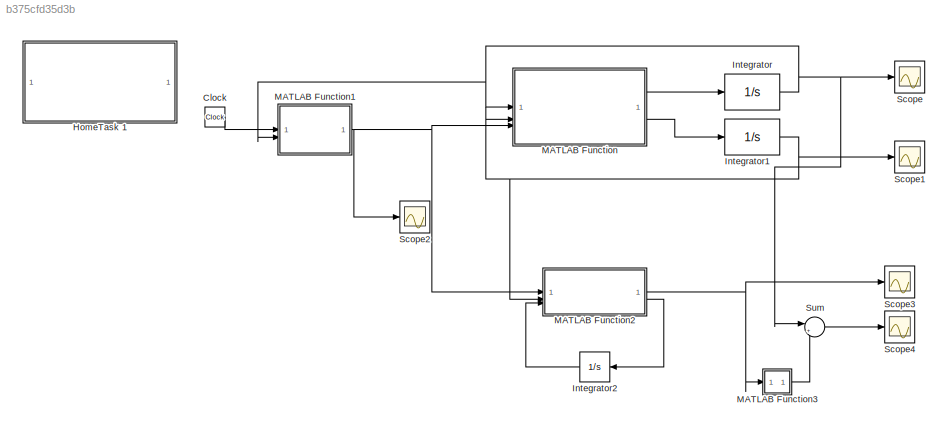
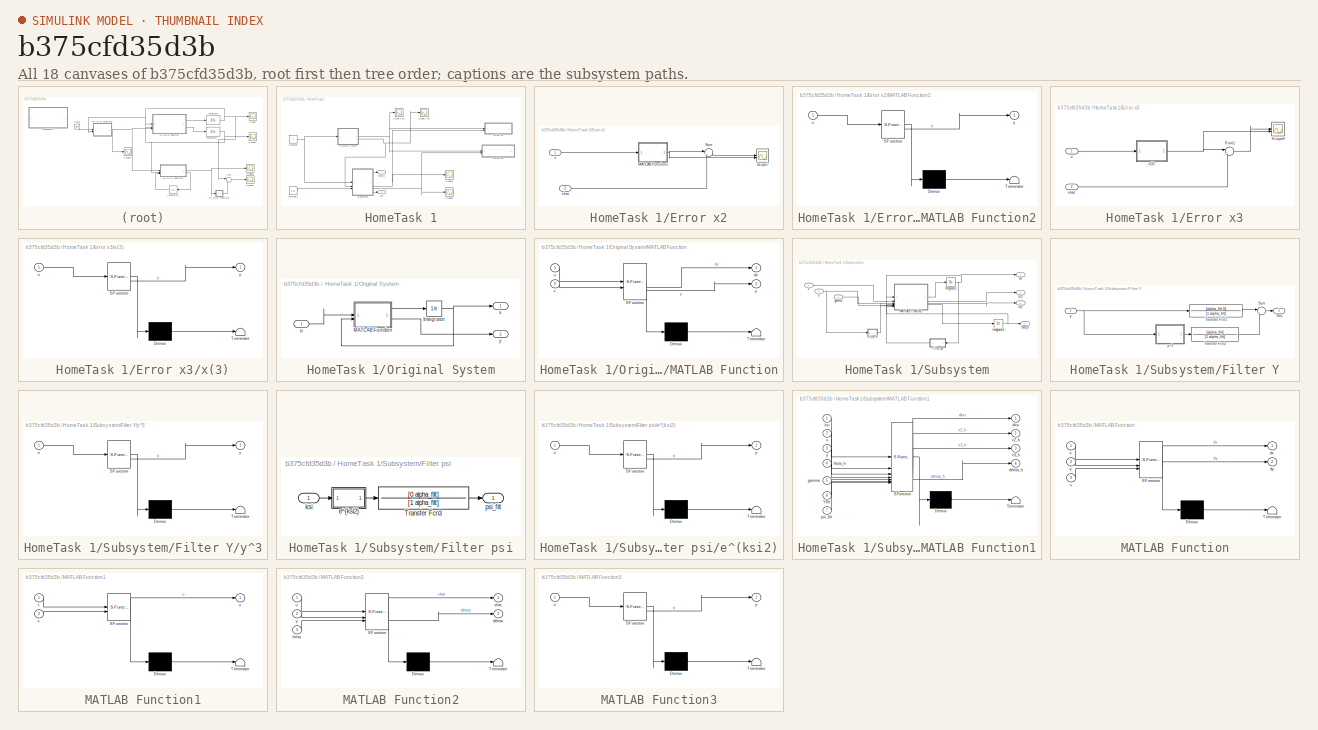
[diagram: thumbnail index - all 18 canvases of the model, root first then tree order]
MODEL slx_b375cfd35d3b
KIND model
CONFIG AbsTol = auto
CONFIG EnableMultiTasking = off
CONFIG FixedStep = auto
CONFIG MaxStep = auto
CONFIG MinStep = auto
CONFIG RelTol = 1e-3
CONFIG SampleTimeConstraint = Unconstrained
CONFIG SolverName = VariableStepAuto
CONFIG StartTime = 0.0
CONFIG StopTime = 1
BLOCK [Clock] Clock
BLOCK [SubSystem] HomeTask 1
  Commented = on
BLOCK [Constant] HomeTask 1/Constant
BLOCK [Constant] HomeTask 1/Constant1
  Value = 0.01
BLOCK [SubSystem] HomeTask 1/Error x2
BLOCK [SubSystem] HomeTask 1/Error x2/MATLAB Function2
  ErrorFcn = Stateflow.Translate.translate
  LibrarySourceBlock = simulink/User-Defined\nFunctions/MATLAB Function
  PermitHierarchicalResolution = ExplicitOnly
  SFBlockType = MATLAB Function
  TreatAsAtomicUnit = on
BLOCK [Demux] HomeTask 1/Error x2/MATLAB Function2/ Demux 
  Outputs = 1
BLOCK [S-Function] HomeTask 1/Error x2/MATLAB Function2/ SFunction 
  EnableBusSupport = on
  FunctionName = sf_sfun
  PortCounts = [1 2]
  SFcnIsStateOwnerBlock = off
  SFunctionDeploymentMode = off
  Tag = Stateflow S-Function 5
BLOCK [Terminator] HomeTask 1/Error x2/MATLAB Function2/ Terminator 
BLOCK [Inport] HomeTask 1/Error x2/MATLAB Function2/u
BLOCK [Outport] HomeTask 1/Error x2/MATLAB Function2/y
BLOCK [Scope] HomeTask 1/Error x2/Scope7
  Floating = off
  NumInputPorts = 2
  ScopeSpecificationString = Simulink.scopes.TimeScopeBlockCfg('CurrentConfiguration', extmgr.ConfigurationSet(extmgr.Configuration('Core','General UI',true),extmgr.Configuration('Core','Source UI',true),extmgr.Configuration('Sources','WiredSimulink',true,'DataLoggingVariableName','ScopeData6'),extmgr.Configuration('Visuals','Time Domain',true,'SerializedDisplays',{struct('MinYLimReal','-0.0001','MaxYLimReal','0.00007','YLabe...<+1468ch>
BLOCK [Sum] HomeTask 1/Error x2/Sum
  Inputs = |+-
BLOCK [Inport] HomeTask 1/Error x2/x
BLOCK [Inport] HomeTask 1/Error x2/xhat
  Port = 2
BLOCK [SubSystem] HomeTask 1/Error x3
BLOCK [Scope] HomeTask 1/Error x3/Scope8
  Floating = off
  NumInputPorts = 2
  ScopeSpecificationString = Simulink.scopes.TimeScopeBlockCfg('CurrentConfiguration', extmgr.ConfigurationSet(extmgr.Configuration('Core','General UI',true),extmgr.Configuration('Core','Source UI',true),extmgr.Configuration('Sources','WiredSimulink',true,'DataLoggingVariableName','ScopeData8'),extmgr.Configuration('Visuals','Time Domain',true,'SerializedDisplays',{struct('MinYLimReal','-0.00597','MaxYLimReal','0.00111','YLab...<+1497ch>
BLOCK [Sum] HomeTask 1/Error x3/Sum1
  Inputs = |+-
BLOCK [Inport] HomeTask 1/Error x3/x
BLOCK [SubSystem] HomeTask 1/Error x3/x(3)
  ErrorFcn = Stateflow.Translate.translate
  LibrarySourceBlock = simulink/User-Defined\nFunctions/MATLAB Function
  PermitHierarchicalResolution = ExplicitOnly
  SFBlockType = MATLAB Function
  TreatAsAtomicUnit = on
BLOCK [Demux] HomeTask 1/Error x3/x(3)/ Demux 
  Outputs = 1
BLOCK [S-Function] HomeTask 1/Error x3/x(3)/ SFunction 
  EnableBusSupport = on
  FunctionName = sf_sfun
  PortCounts = [1 2]
  SFcnIsStateOwnerBlock = off
  SFunctionDeploymentMode = off
  Tag = Stateflow S-Function 6
BLOCK [Terminator] HomeTask 1/Error x3/x(3)/ Terminator 
BLOCK [Inport] HomeTask 1/Error x3/x(3)/u
BLOCK [Outport] HomeTask 1/Error x3/x(3)/y
BLOCK [Inport] HomeTask 1/Error x3/xhat
  Port = 2
BLOCK [SubSystem] HomeTask 1/Original System
BLOCK [Integrator] HomeTask 1/Original System/Integrator
  InitialCondition = x0
BLOCK [SubSystem] HomeTask 1/Original System/MATLAB Function
  ErrorFcn = Stateflow.Translate.translate
  LibrarySourceBlock = simulink/User-Defined\nFunctions/MATLAB Function
  PermitHierarchicalResolution = ExplicitOnly
  SFBlockType = MATLAB Function
  TreatAsAtomicUnit = on
BLOCK [Demux] HomeTask 1/Original System/MATLAB Function/ Demux 
  Outputs = 1
BLOCK [S-Function] HomeTask 1/Original System/MATLAB Function/ SFunction 
  EnableBusSupport = on
  FunctionName = sf_sfun
  PortCounts = [2 3]
  SFcnIsStateOwnerBlock = off
  SFunctionDeploymentMode = off
  Tag = Stateflow S-Function 2
BLOCK [Terminator] HomeTask 1/Original System/MATLAB Function/ Terminator 
BLOCK [Outport] HomeTask 1/Original System/MATLAB Function/dx
BLOCK [Inport] HomeTask 1/Original System/MATLAB Function/u
BLOCK [Inport] HomeTask 1/Original System/MATLAB Function/x
  Port = 2
BLOCK [Outport] HomeTask 1/Original System/MATLAB Function/y
  Port = 2
BLOCK [Inport] HomeTask 1/Original System/u
BLOCK [Outport] HomeTask 1/Original System/x
BLOCK [Outport] HomeTask 1/Original System/y
  Port = 2
BLOCK [Scope] HomeTask 1/Scope x os
  Floating = off
  NumInputPorts = 1
  ScopeSpecificationString = Simulink.scopes.TimeScopeBlockCfg('CurrentConfiguration', extmgr.ConfigurationSet(extmgr.Configuration('Core','General UI',true),extmgr.Configuration('Core','Source UI',true),extmgr.Configuration('Sources','WiredSimulink',true,'DataLoggingVariableName','ScopeData1'),extmgr.Configuration('Visuals','Time Domain',true,'SerializedDisplays',{struct('MinYLimReal','-0.96453','MaxYLimReal','3.03891','YLab...<+1538ch>
BLOCK [Scope] HomeTask 1/Scope y os
  Floating = off
  NumInputPorts = 1
  ScopeSpecificationString = Simulink.scopes.TimeScopeBlockCfg('CurrentConfiguration', extmgr.ConfigurationSet(extmgr.Configuration('Core','General UI',true),extmgr.Configuration('Core','Source UI',true),extmgr.Configuration('Sources','WiredSimulink',true),extmgr.Configuration('Visuals','Time Domain',true,'SerializedDisplays',{struct('MinYLimReal','-1.2637','MaxYLimReal','2.57332','YLabelReal','','MinYLimMag','0.00000','MaxYL...<+1383ch>
BLOCK [Scope] HomeTask 1/Scope4
  Floating = off
  NumInputPorts = 1
  ScopeSpecificationString = Simulink.scopes.TimeScopeBlockCfg('CurrentConfiguration', extmgr.ConfigurationSet(extmgr.Configuration('Core','General UI',true),extmgr.Configuration('Core','Source UI',true),extmgr.Configuration('Sources','WiredSimulink',true,'DataLoggingVariableName','ScopeData3'),extmgr.Configuration('Visuals','Time Domain',true,'SerializedDisplays',{struct('MinYLimReal','-0.56574','MaxYLimReal','2.93428','YLab...<+1421ch>
BLOCK [Scope] HomeTask 1/Scope6
  Floating = off
  NumInputPorts = 1
  ScopeSpecificationString = Simulink.scopes.TimeScopeBlockCfg('CurrentConfiguration', extmgr.ConfigurationSet(extmgr.Configuration('Core','General UI',true),extmgr.Configuration('Core','Source UI',true),extmgr.Configuration('Sources','WiredSimulink',true,'DataLoggingVariableName','ScopeData5'),extmgr.Configuration('Visuals','Time Domain',true,'SerializedDisplays',{struct('MinYLimReal','-5.91872','MaxYLimReal','3.45902','YLab...<+1446ch>
BLOCK [SubSystem] HomeTask 1/Subsystem
BLOCK [SubSystem] HomeTask 1/Subsystem/Filter Y
BLOCK [Sum] HomeTask 1/Subsystem/Filter Y/Sum
  Inputs = |++
BLOCK [TransferFcn] HomeTask 1/Subsystem/Filter Y/Transfer Fcn1
  Denominator = [1 alpha_filt]
  Numerator = [alpha_filt 0]
BLOCK [TransferFcn] HomeTask 1/Subsystem/Filter Y/Transfer Fcn2
  Denominator = [1 alpha_filt]
  Numerator = [alpha_filt]
BLOCK [Outport] HomeTask 1/Subsystem/Filter Y/Yfilt
BLOCK [Inport] HomeTask 1/Subsystem/Filter Y/y
BLOCK [SubSystem] HomeTask 1/Subsystem/Filter Y/y^3
  ErrorFcn = Stateflow.Translate.translate
  LibrarySourceBlock = simulink/User-Defined\nFunctions/MATLAB Function
  PermitHierarchicalResolution = ExplicitOnly
  SFBlockType = MATLAB Function
  TreatAsAtomicUnit = on
BLOCK [Demux] HomeTask 1/Subsystem/Filter Y/y^3/ Demux 
  Outputs = 1
BLOCK [S-Function] HomeTask 1/Subsystem/Filter Y/y^3/ SFunction 
  EnableBusSupport = on
  FunctionName = sf_sfun
  PortCounts = [1 2]
  SFcnIsStateOwnerBlock = off
  SFunctionDeploymentMode = off
  Tag = Stateflow S-Function 7
BLOCK [Terminator] HomeTask 1/Subsystem/Filter Y/y^3/ Terminator 
BLOCK [Inport] HomeTask 1/Subsystem/Filter Y/y^3/u
BLOCK [Outport] HomeTask 1/Subsystem/Filter Y/y^3/y
BLOCK [SubSystem] HomeTask 1/Subsystem/Filter psi
  NameLocation = top
BLOCK [TransferFcn] HomeTask 1/Subsystem/Filter psi/Transfer Fcn3
  Denominator = [1 alpha_filt]
  Numerator = [0 alpha_filt]
BLOCK [SubSystem] HomeTask 1/Subsystem/Filter psi/e^(ksi2)
  ErrorFcn = Stateflow.Translate.translate
  LibrarySourceBlock = simulink/User-Defined\nFunctions/MATLAB Function
  PermitHierarchicalResolution = ExplicitOnly
  SFBlockType = MATLAB Function
  TreatAsAtomicUnit = on
BLOCK [Demux] HomeTask 1/Subsystem/Filter psi/e^(ksi2)/ Demux 
  Outputs = 1
BLOCK [S-Function] HomeTask 1/Subsystem/Filter psi/e^(ksi2)/ SFunction 
  EnableBusSupport = on
  FunctionName = sf_sfun
  PortCounts = [1 2]
  SFcnIsStateOwnerBlock = off
  SFunctionDeploymentMode = off
  Tag = Stateflow S-Function 8
BLOCK [Terminator] HomeTask 1/Subsystem/Filter psi/e^(ksi2)/ Terminator 
BLOCK [Inport] HomeTask 1/Subsystem/Filter psi/e^(ksi2)/u
BLOCK [Outport] HomeTask 1/Subsystem/Filter psi/e^(ksi2)/y
BLOCK [Inport] HomeTask 1/Subsystem/Filter psi/ksi
BLOCK [Outport] HomeTask 1/Subsystem/Filter psi/psi_filt
BLOCK [Integrator] HomeTask 1/Subsystem/Integrator1
  InitialCondition = [0 0]
BLOCK [Integrator] HomeTask 1/Subsystem/Integrator3
  InitialCondition = 0.01
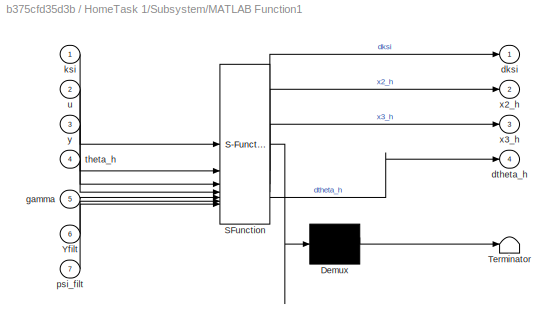
BLOCK [SubSystem] HomeTask 1/Subsystem/MATLAB Function1
  ErrorFcn = Stateflow.Translate.translate
  LibrarySourceBlock = simulink/User-Defined\nFunctions/MATLAB Function
  PermitHierarchicalResolution = ExplicitOnly
  SFBlockType = MATLAB Function
  TreatAsAtomicUnit = on
BLOCK [Demux] HomeTask 1/Subsystem/MATLAB Function1/ Demux 
  Outputs = 1
BLOCK [S-Function] HomeTask 1/Subsystem/MATLAB Function1/ SFunction 
  EnableBusSupport = on
  FunctionName = sf_sfun
  PortCounts = [7 5]
  SFcnIsStateOwnerBlock = off
  SFunctionDeploymentMode = off
  Tag = Stateflow S-Function 1
BLOCK [Terminator] HomeTask 1/Subsystem/MATLAB Function1/ Terminator 
BLOCK [Inport] HomeTask 1/Subsystem/MATLAB Function1/Yfilt
  Port = 6
BLOCK [Outport] HomeTask 1/Subsystem/MATLAB Function1/dksi
BLOCK [Outport] HomeTask 1/Subsystem/MATLAB Function1/dtheta_h
  Port = 4
BLOCK [Inport] HomeTask 1/Subsystem/MATLAB Function1/gamma
  Port = 5
BLOCK [Inport] HomeTask 1/Subsystem/MATLAB Function1/ksi
BLOCK [Inport] HomeTask 1/Subsystem/MATLAB Function1/psi_filt
  Port = 7
BLOCK [Inport] HomeTask 1/Subsystem/MATLAB Function1/theta_h
  Port = 4
BLOCK [Inport] HomeTask 1/Subsystem/MATLAB Function1/u
  Port = 2
BLOCK [Outport] HomeTask 1/Subsystem/MATLAB Function1/x2_h
  Port = 2
BLOCK [Outport] HomeTask 1/Subsystem/MATLAB Function1/x3_h
  Port = 3
BLOCK [Inport] HomeTask 1/Subsystem/MATLAB Function1/y
  Port = 3
BLOCK [Inport] HomeTask 1/Subsystem/gamma
  Port = 3
BLOCK [Outport] HomeTask 1/Subsystem/ksi
  Port = 4
BLOCK [Outport] HomeTask 1/Subsystem/theta_h
BLOCK [Inport] HomeTask 1/Subsystem/u
BLOCK [Outport] HomeTask 1/Subsystem/x2_h
  Port = 2
BLOCK [Outport] HomeTask 1/Subsystem/x3_h
  Port = 3
BLOCK [Inport] HomeTask 1/Subsystem/y
  Port = 2
BLOCK [Outport] HomeTask 1/ksi
  Port = 2
BLOCK [Outport] HomeTask 1/theta_h
BLOCK [Integrator] Integrator
  InitialCondition = [0.5 -1]
BLOCK [Integrator] Integrator1
  InitialCondition = [10 -12]
BLOCK [Integrator] Integrator2
  InitialCondition = [0;0]
  NameLocation = top
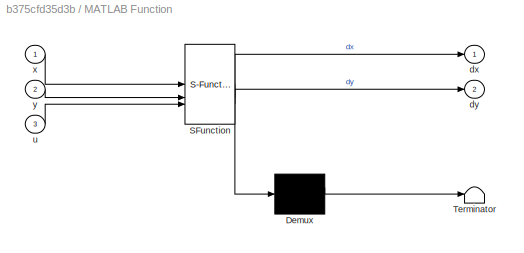
BLOCK [SubSystem] MATLAB Function
  ErrorFcn = Stateflow.Translate.translate
  LibrarySourceBlock = simulink/User-Defined\nFunctions/MATLAB Function
  PermitHierarchicalResolution = ExplicitOnly
  SFBlockType = MATLAB Function
  TreatAsAtomicUnit = on
BLOCK [Demux] MATLAB Function/ Demux 
  Outputs = 1
BLOCK [S-Function] MATLAB Function/ SFunction 
  EnableBusSupport = on
  FunctionName = sf_sfun
  PortCounts = [3 3]
  SFcnIsStateOwnerBlock = off
  SFunctionDeploymentMode = off
  Tag = Stateflow S-Function 3
BLOCK [Terminator] MATLAB Function/ Terminator 
BLOCK [Outport] MATLAB Function/dx
BLOCK [Outport] MATLAB Function/dy
  Port = 2
BLOCK [Inport] MATLAB Function/u
  Port = 3
BLOCK [Inport] MATLAB Function/x
BLOCK [Inport] MATLAB Function/y
  Port = 2
BLOCK [SubSystem] MATLAB Function1
  ErrorFcn = Stateflow.Translate.translate
  LibrarySourceBlock = simulink/User-Defined\nFunctions/MATLAB Function
  PermitHierarchicalResolution = ExplicitOnly
  SFBlockType = MATLAB Function
  TreatAsAtomicUnit = on
BLOCK [Demux] MATLAB Function1/ Demux 
  Outputs = 1
BLOCK [S-Function] MATLAB Function1/ SFunction 
  EnableBusSupport = on
  FunctionName = sf_sfun
  PortCounts = [2 2]
  SFcnIsStateOwnerBlock = off
  SFunctionDeploymentMode = off
  Tag = Stateflow S-Function 4
BLOCK [Terminator] MATLAB Function1/ Terminator 
BLOCK [Inport] MATLAB Function1/t
BLOCK [Outport] MATLAB Function1/u
BLOCK [Inport] MATLAB Function1/x
  Port = 2
BLOCK [SubSystem] MATLAB Function2
  ErrorFcn = Stateflow.Translate.translate
  LibrarySourceBlock = simulink/User-Defined\nFunctions/MATLAB Function
  PermitHierarchicalResolution = ExplicitOnly
  SFBlockType = MATLAB Function
  TreatAsAtomicUnit = on
BLOCK [Demux] MATLAB Function2/ Demux 
  Outputs = 1
BLOCK [S-Function] MATLAB Function2/ SFunction 
  EnableBusSupport = on
  FunctionName = sf_sfun
  PortCounts = [3 3]
  SFcnIsStateOwnerBlock = off
  SFunctionDeploymentMode = off
  Tag = Stateflow S-Function 9
BLOCK [Terminator] MATLAB Function2/ Terminator 
BLOCK [Outport] MATLAB Function2/dtheta
  Port = 2
BLOCK [Inport] MATLAB Function2/theta
  Port = 3
BLOCK [Inport] MATLAB Function2/u
BLOCK [Outport] MATLAB Function2/xhat
BLOCK [Inport] MATLAB Function2/y
  Port = 2
BLOCK [SubSystem] MATLAB Function3
  ErrorFcn = Stateflow.Translate.translate
  LibrarySourceBlock = simulink/User-Defined\nFunctions/MATLAB Function
  PermitHierarchicalResolution = ExplicitOnly
  SFBlockType = MATLAB Function
  TreatAsAtomicUnit = on
BLOCK [Demux] MATLAB Function3/ Demux 
  Outputs = 1
BLOCK [S-Function] MATLAB Function3/ SFunction 
  EnableBusSupport = on
  FunctionName = sf_sfun
  PortCounts = [1 2]
  SFcnIsStateOwnerBlock = off
  SFunctionDeploymentMode = off
  Tag = Stateflow S-Function 10
BLOCK [Terminator] MATLAB Function3/ Terminator 
BLOCK [Inport] MATLAB Function3/u
BLOCK [Outport] MATLAB Function3/y
BLOCK [Scope] Scope
  Floating = off
  NumInputPorts = 1
  ScopeSpecificationString = Simulink.scopes.TimeScopeBlockCfg('CurrentConfiguration', extmgr.ConfigurationSet(extmgr.Configuration('Core','General UI',true),extmgr.Configuration('Core','Source UI',true),extmgr.Configuration('Sources','WiredSimulink',true,'DataLoggingVariableName','ScopeData1'),extmgr.Configuration('Visuals','Time Domain',true,'SerializedDisplays',{struct('MinYLimReal','-33.52392','MaxYLimReal','6.974','YLabe...<+1491ch>
BLOCK [Scope] Scope1
  Floating = off
  NumInputPorts = 1
  ScopeSpecificationString = Simulink.scopes.TimeScopeBlockCfg('CurrentConfiguration', extmgr.ConfigurationSet(extmgr.Configuration('Core','General UI',true),extmgr.Configuration('Core','Source UI',true),extmgr.Configuration('Sources','WiredSimulink',true,'DataLoggingVariableName','ScopeData2'),extmgr.Configuration('Visuals','Time Domain',true,'SerializedDisplays',{struct('MinYLimReal','-12.60566','MaxYLimReal','62.57051','YL...<+1485ch>
BLOCK [Scope] Scope2
  Floating = off
  NumInputPorts = 1
  ScopeSpecificationString = Simulink.scopes.TimeScopeBlockCfg('CurrentConfiguration', extmgr.ConfigurationSet(extmgr.Configuration('Core','General UI',true),extmgr.Configuration('Core','Source UI',true),extmgr.Configuration('Sources','WiredSimulink',true,'DataLoggingVariableName','ScopeData3'),extmgr.Configuration('Visuals','Time Domain',true,'SerializedDisplays',{struct('MinYLimReal','0.22432','MaxYLimReal','0.76792','YLabe...<+1373ch>
BLOCK [Scope] Scope3
  Floating = off
  NumInputPorts = 1
  ScopeSpecificationString = Simulink.scopes.TimeScopeBlockCfg('CurrentConfiguration', extmgr.ConfigurationSet(extmgr.Configuration('Core','General UI',true),extmgr.Configuration('Core','Source UI',true),extmgr.Configuration('Sources','WiredSimulink',true,'DataLoggingVariableName','ScopeData4'),extmgr.Configuration('Visuals','Time Domain',true,'SerializedDisplays',{struct('MinYLimReal','-35.16365','MaxYLimReal','6.80697','YLa...<+1486ch>
BLOCK [Scope] Scope4
  Floating = off
  NumInputPorts = 1
  ScopeSpecificationString = Simulink.scopes.TimeScopeBlockCfg('CurrentConfiguration', extmgr.ConfigurationSet(extmgr.Configuration('Core','General UI',true),extmgr.Configuration('Core','Source UI',true),extmgr.Configuration('Sources','WiredSimulink',true,'DataLoggingVariableName','ScopeData5'),extmgr.Configuration('Visuals','Time Domain',true,'SerializedDisplays',{struct('MinYLimReal','-0.09231','MaxYLimReal','0.14794','YLab...<+1491ch>
BLOCK [Sum] Sum
  Inputs = |+-
LINE Clock:1 -> MATLAB Function1:1
LINE HomeTask 1/Constant1:1 -> HomeTask 1/Subsystem:3
NET HomeTask 1/Constant:1 -> HomeTask 1/Original System:1, HomeTask 1/Subsystem:1
NET HomeTask 1/Error x2/MATLAB Function2:1 -> HomeTask 1/Error x2/Scope7:2, HomeTask 1/Error x2/Sum:1
LINE HomeTask 1/Error x2/Sum:1 -> HomeTask 1/Error x2/Scope7:1
LINE HomeTask 1/Error x2/x:1 -> HomeTask 1/Error x2/MATLAB Function2:1
LINE HomeTask 1/Error x2/xhat:1 -> HomeTask 1/Error x2/Sum:2
LINE HomeTask 1/Error x3/Sum1:1 -> HomeTask 1/Error x3/Scope8:1
NET HomeTask 1/Error x3/x(3):1 -> HomeTask 1/Error x3/Scope8:2, HomeTask 1/Error x3/Sum1:1
LINE HomeTask 1/Error x3/x:1 -> HomeTask 1/Error x3/x(3):1
LINE HomeTask 1/Error x3/xhat:1 -> HomeTask 1/Error x3/Sum1:2
NET HomeTask 1/Original System/Integrator:1 -> HomeTask 1/Original System/MATLAB Function:2, HomeTask 1/Original System/x:1
LINE HomeTask 1/Original System/MATLAB Function:1 -> HomeTask 1/Original System/Integrator:1
LINE HomeTask 1/Original System/MATLAB Function:2 -> HomeTask 1/Original System/y:1
LINE HomeTask 1/Original System/u:1 -> HomeTask 1/Original System/MATLAB Function:1
NET HomeTask 1/Original System:1 -> HomeTask 1/Error x2:1, HomeTask 1/Error x3:1, HomeTask 1/Scope x os:1
NET HomeTask 1/Original System:2 -> HomeTask 1/Scope y os:1, HomeTask 1/Subsystem:2
LINE HomeTask 1/Subsystem/Filter Y/Sum:1 -> HomeTask 1/Subsystem/Filter Y/Yfilt:1
LINE HomeTask 1/Subsystem/Filter Y/Transfer Fcn1:1 -> HomeTask 1/Subsystem/Filter Y/Sum:1
LINE HomeTask 1/Subsystem/Filter Y/Transfer Fcn2:1 -> HomeTask 1/Subsystem/Filter Y/Sum:2
NET HomeTask 1/Subsystem/Filter Y/y:1 -> HomeTask 1/Subsystem/Filter Y/Transfer Fcn1:1, HomeTask 1/Subsystem/Filter Y/y^3:1
LINE HomeTask 1/Subsystem/Filter Y/y^3:1 -> HomeTask 1/Subsystem/Filter Y/Transfer Fcn2:1
LINE HomeTask 1/Subsystem/Filter Y:1 -> HomeTask 1/Subsystem/MATLAB Function1:6
LINE HomeTask 1/Subsystem/Filter psi/Transfer Fcn3:1 -> HomeTask 1/Subsystem/Filter psi/psi_filt:1
LINE HomeTask 1/Subsystem/Filter psi/e^(ksi2):1 -> HomeTask 1/Subsystem/Filter psi/Transfer Fcn3:1
LINE HomeTask 1/Subsystem/Filter psi/ksi:1 -> HomeTask 1/Subsystem/Filter psi/e^(ksi2):1
LINE HomeTask 1/Subsystem/Filter psi:1 -> HomeTask 1/Subsystem/MATLAB Function1:7
NET HomeTask 1/Subsystem/Integrator1:1 -> HomeTask 1/Subsystem/Filter psi:1, HomeTask 1/Subsystem/MATLAB Function1:1, HomeTask 1/Subsystem/ksi:1
NET HomeTask 1/Subsystem/Integrator3:1 -> HomeTask 1/Subsystem/MATLAB Function1:4, HomeTask 1/Subsystem/theta_h:1
LINE HomeTask 1/Subsystem/MATLAB Function1:1 -> HomeTask 1/Subsystem/Integrator1:1
LINE HomeTask 1/Subsystem/MATLAB Function1:2 -> HomeTask 1/Subsystem/x2_h:1
LINE HomeTask 1/Subsystem/MATLAB Function1:3 -> HomeTask 1/Subsystem/x3_h:1
LINE HomeTask 1/Subsystem/MATLAB Function1:4 -> HomeTask 1/Subsystem/Integrator3:1
LINE HomeTask 1/Subsystem/gamma:1 -> HomeTask 1/Subsystem/MATLAB Function1:5
LINE HomeTask 1/Subsystem/u:1 -> HomeTask 1/Subsystem/MATLAB Function1:2
NET HomeTask 1/Subsystem/y:1 -> HomeTask 1/Subsystem/Filter Y:1, HomeTask 1/Subsystem/MATLAB Function1:3
LINE HomeTask 1/Subsystem:1 -> HomeTask 1/theta_h:1
NET HomeTask 1/Subsystem:2 -> HomeTask 1/Error x2:2, HomeTask 1/Scope4:1
NET HomeTask 1/Subsystem:3 -> HomeTask 1/Error x3:2, HomeTask 1/Scope6:1
LINE HomeTask 1/Subsystem:4 -> HomeTask 1/ksi:1
NET Integrator1:1 -> MATLAB Function2:2, MATLAB Function:2, Scope1:1
LINE Integrator2:1 -> MATLAB Function2:3
NET Integrator:1 -> MATLAB Function1:2, MATLAB Function:1, Scope:1, Sum:1
NET MATLAB Function1:1 -> MATLAB Function2:1, MATLAB Function:3, Scope2:1
NET MATLAB Function2:1 -> MATLAB Function3:1, Scope3:1
LINE MATLAB Function2:2 -> Integrator2:1
LINE MATLAB Function3:1 -> Sum:2
LINE MATLAB Function:1 -> Integrator:1
LINE MATLAB Function:2 -> Integrator1:1
LINE Sum:1 -> Scope4:1
note: NET lines group one-source signal fan-out (src -> all destinations, sorted); 1:1 wires keep LINE
CHART MATLAB Function3 states=1 transitions=1
  STATE_LABEL 'eML_blk_kernel()'
  STATE_LABEL 'SCRIPT:\nfunction y = fcn(u)\n\ny = [u(1) u(2)];\n'
CHART HomeTask 1/Subsystem/MATLAB Function1 states=1 transitions=1
  STATE_LABEL 'eML_blk_kernel()'
  STATE_LABEL 'SCRIPT:\nfunction [dksi,x2_h, x3_h, dtheta_h] = fcn(ksi, u, y, theta_h, gamma, Yfilt, psi_filt)\n    dksi1 = -ksi(1) + y^2 + sin(y);\n    dksi2 = u*y + (y^2 + 1)^(-1);\n    dtheta_h = gamma * psi_filt * (Yfilt - psi_filt * theta_h);\n    x2_h = ksi(1);\n    x3_h = ksi(2) + real(log(complex(theta_h)));%log(theta_h);\n    dksi = [dksi1, dksi2];\n\n'
CHART HomeTask 1/Original System/MATLAB Function states=1 transitions=1
  STATE_LABEL 'eML_blk_kernel()'
  STATE_LABEL 'SCRIPT:\nfunction [dx,y] = fcn(u,x)\n\ndx1 = -x(1)^3 + exp(x(3));\ndx2 = -x(2) + x(1)^2 + sin(x(1));\ndx3 = 1/(x(1)^2 + 1) + x(1) * u;\ny = x(1);\ndx = [dx1, dx2, dx3];\n'
CHART MATLAB Function states=1 transitions=1
  STATE_LABEL 'eML_blk_kernel()'
  STATE_LABEL 'SCRIPT:\nfunction [dx, dy] = fcn(x, y, u)\nL1 = 10 * 0.001;\nL3 = 5 * 0.001;\nC2 = 22 * 0.000001;\nC4 = 22.9 * 0.000001;\nG = 0.0447 ;\nE = 12;\n\ndx1 = -(1-u)*y(1) / L1 + E / L1;\ndx2 = y(2)/C4 - G*x(2) / C4;\ndy1 = (1-u)*x(1)/C2 + u*y(2) / C2;\ndy2 = -u*y(1)/L3 - x(2)/L3;\ndx = [dx1 dx2];\ndy = [dy1 dy2];\n\n'
CHART MATLAB Function1 states=1 transitions=1
  STATE_LABEL 'eML_blk_kernel()'
  STATE_LABEL 'SCRIPT:\nfunction u = fcn(t, x)\nE = 12;\nv2 = 10;\nG = 0.0447;\nlambda0 = 1;\n\nVd = 25;\nif (t >= 0.2 && t < 0.4)\n    Vd = 30;\nelseif (t >= 0.4 && t < 0.6)\n    Vd = 15;\nelseif (t >= 0.6 && t < 0.8)\n    Vd = 5;\nelse\n    Vd = 20;\nend\n\nlambda = lambda0 * min(abs(Vd)/(abs(Vd) + E), E / (abs(Vd) + E) );\nVd = abs(Vd);\nu = abs(Vd)/(abs(Vd) + E) + lambda * (G*Vd*v2 + E*(x(2)-x(1))) / (1 + (G*Vd*v2+E*(x(2)-x(1))...<+7ch>'
CHART HomeTask 1/Error x2/MATLAB Function2 states=1 transitions=1
  STATE_LABEL 'eML_blk_kernel()'
  STATE_LABEL 'SCRIPT:\nfunction y = fcn(u)\n\ny = u(2);\n'
CHART HomeTask 1/Error x3/x(3) states=1 transitions=1
  STATE_LABEL 'eML_blk_kernel()'
  STATE_LABEL 'SCRIPT:\nfunction y = fcn(u)\n\ny = u(3);\n'
CHART HomeTask 1/Subsystem/Filter Y/y^3 states=1 transitions=1
  STATE_LABEL 'eML_blk_kernel()'
  STATE_LABEL 'SCRIPT:\nfunction y = fcn(u)\n\ny = u^3;\n'
CHART HomeTask 1/Subsystem/Filter psi/e^(ksi2) states=1 transitions=1
  STATE_LABEL 'eML_blk_kernel()'
  STATE_LABEL 'SCRIPT:\nfunction y = fcn(u)\n\ny = exp(u(2));\n'
CHART MATLAB Function2 states=1 transitions=1
  STATE_LABEL 'eML_blk_kernel()'
  STATE_LABEL 'SCRIPT:\nfunction [xhat, dtheta] = fcn(u, y, theta)\nL1 = 10 * 0.001;\nL3 = 5 * 0.001;\nC2 = 22 * 0.000001;\nC4 = 22.9 * 0.000001;\nG = 0.0447 ;\nE = 12;\n\ngamma1 = 50; gamma2 = 1;\n\n%dtheta1 = -gamma1*(1-u)*(theta(1) + C2*gamma1*y(1)) + gamma1*u*y(2) + (E-(1-u)*y(1))/L1;\ndtheta1 = (E - (1-u)*y(1))/L1 - gamma1*((1-u)*(theta(1)+C2*gamma1*y(1)) + u*y(2));\ndtheta2 = (y(2) - G*(theta(2)-L3*gamma2*y(2)))/C4 - g...<+125ch>'
CHART  states=0 transitions=0
CHART  states=0 transitions=0
CHART  states=0 transitions=0
CHART  states=0 transitions=0
CHART  states=0 transitions=0
CHART  states=0 transitions=0
CHART  states=0 transitions=0
CHART  states=0 transitions=0
CHART  states=0 transitions=0
CHART  states=0 transitions=0
